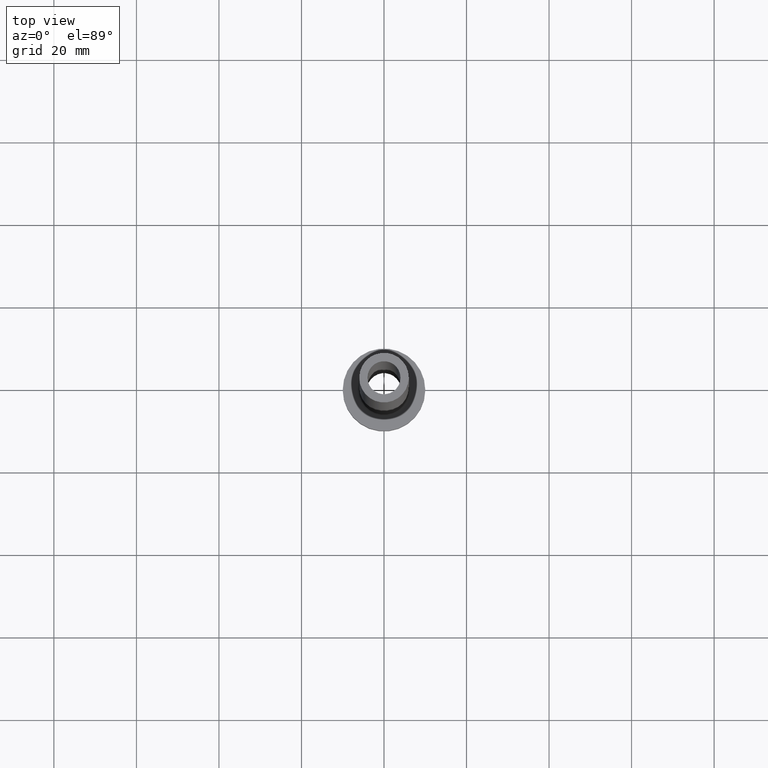
[diagram: clean part render]
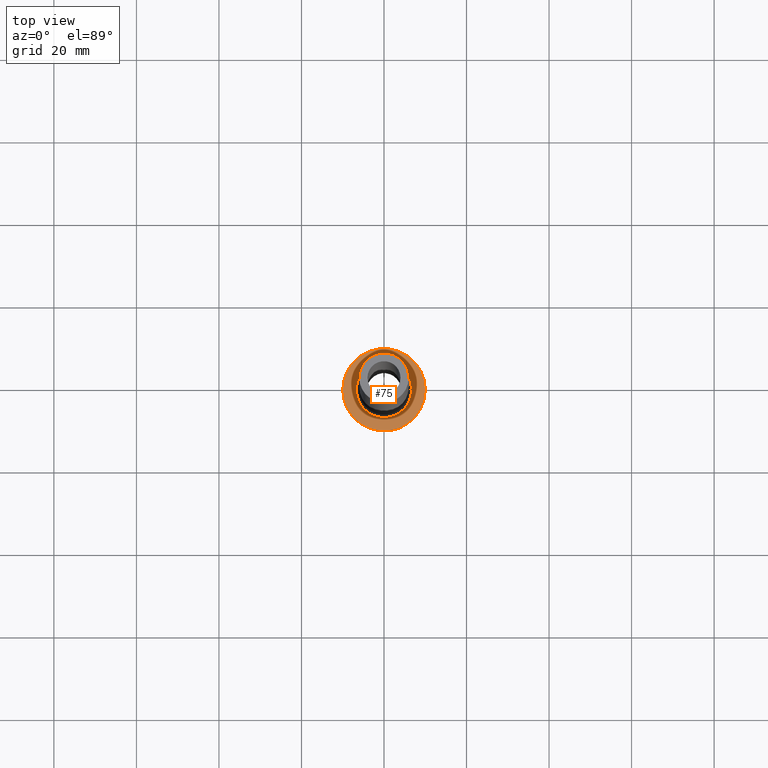
[diagram: same view with one face highlighted and labeled with its STEP entity id]
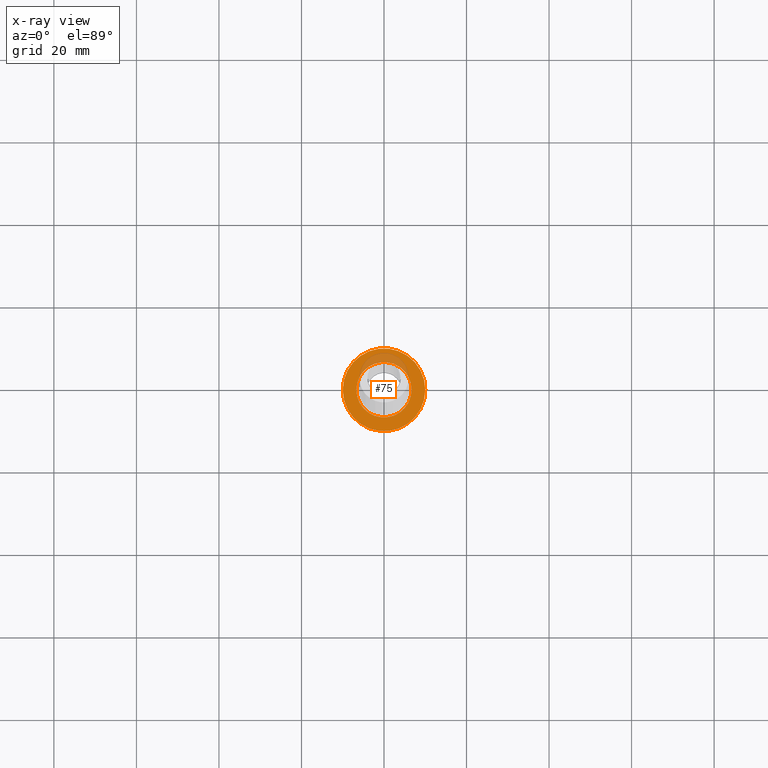
[diagram: x-ray of the same camera — body ghosted, the highlighted face saturated]
A machine part, top view. The second image highlights one B-rep face of the part: STEP entity #75.
The next image is the same camera in x-ray: the body ghosted, the highlighted face saturated — about 14% of this face is hidden behind the body in this view.
In plain terms, the highlighted planar face has unit normal (0, 0, 1).
Its self-contained STEP definition (entity closure, byte-faithful):
#9 = VERTEX_POINT ( 'NONE', #152 ) ;
#18 = AXIS2_PLACEMENT_3D ( 'NONE', #408, #298, #370 ) ;
#20 = AXIS2_PLACEMENT_3D ( 'NONE', #142, #222, #297 ) ;
#24 = PLANE ( 'NONE',  #82 ) ;
#46 = DIRECTION ( 'NONE',  ( 0.000000000000000000, 0.000000000000000000, 1.000000000000000000 ) ) ;
#52 = EDGE_CURVE ( 'NONE', #348, #226, #326, .T. ) ;
#75 = ADVANCED_FACE ( 'NONE', ( #102, #394 ), #24, .T. ) ;
#82 = AXIS2_PLACEMENT_3D ( 'NONE', #168, #320, #314 ) ;
#89 = AXIS2_PLACEMENT_3D ( 'NONE', #149, #46, #159 ) ;
#102 = FACE_BOUND ( 'NONE', #202, .T. ) ;
#105 = DIRECTION ( 'NONE',  ( -0.000000000000000000, -0.000000000000000000, -1.000000000000000000 ) ) ;
#111 = CIRCLE ( 'NONE', #89, 10.00000000000000000 ) ;
#115 = EDGE_CURVE ( 'NONE', #9, #151, #460, .T. ) ;
#142 = CARTESIAN_POINT ( 'NONE',  ( 0.000000000000000000, 0.000000000000000000, 7.000000000000000000 ) ) ;
#147 = ORIENTED_EDGE ( 'NONE', *, *, #115, .T. ) ;
#149 = CARTESIAN_POINT ( 'NONE',  ( 0.000000000000000000, 0.000000000000000000, 7.000000000000000000 ) ) ;
#151 = VERTEX_POINT ( 'NONE', #299 ) ;
#152 = CARTESIAN_POINT ( 'NONE',  ( 6.700000000000001066, 0.000000000000000000, 7.000000000000006217 ) ) ;
#159 = DIRECTION ( 'NONE',  ( 1.000000000000000000, 0.000000000000000000, 0.000000000000000000 ) ) ;
#168 = CARTESIAN_POINT ( 'NONE',  ( 0.000000000000000000, 0.000000000000000000, 7.000000000000000000 ) ) ;
#198 = ORIENTED_EDGE ( 'NONE', *, *, #411, .T. ) ;
#202 = EDGE_LOOP ( 'NONE', ( #147, #384 ) ) ;
#210 = CARTESIAN_POINT ( 'NONE',  ( 0.000000000000000000, 0.000000000000000000, 7.000000000000000000 ) ) ;
#222 = DIRECTION ( 'NONE',  ( 0.000000000000000000, 0.000000000000000000, 1.000000000000000000 ) ) ;
#226 = VERTEX_POINT ( 'NONE', #414 ) ;
#256 = AXIS2_PLACEMENT_3D ( 'NONE', #210, #105, #400 ) ;
#269 = CARTESIAN_POINT ( 'NONE',  ( 10.00000000000000000, 1.224646799147353256E-15, 7.000000000000000000 ) ) ;
#284 = CIRCLE ( 'NONE', #18, 6.700000000000001066 ) ;
#297 = DIRECTION ( 'NONE',  ( 1.000000000000000000, 0.000000000000000000, 0.000000000000000000 ) ) ;
#298 = DIRECTION ( 'NONE',  ( -0.000000000000000000, -0.000000000000000000, -1.000000000000000000 ) ) ;
#299 = CARTESIAN_POINT ( 'NONE',  ( -6.700000000000001066, 8.205133554287267548E-16, 7.000000000000006217 ) ) ;
#309 = ORIENTED_EDGE ( 'NONE', *, *, #52, .T. ) ;
#314 = DIRECTION ( 'NONE',  ( 1.000000000000000000, 0.000000000000000000, -0.000000000000000000 ) ) ;
#320 = DIRECTION ( 'NONE',  ( 0.000000000000000000, 0.000000000000000000, 1.000000000000000000 ) ) ;
#326 = CIRCLE ( 'NONE', #20, 10.00000000000000000 ) ;
#348 = VERTEX_POINT ( 'NONE', #269 ) ;
#370 = DIRECTION ( 'NONE',  ( 1.000000000000000000, 0.000000000000000000, 0.000000000000000000 ) ) ;
#384 = ORIENTED_EDGE ( 'NONE', *, *, #404, .T. ) ;
#394 = FACE_OUTER_BOUND ( 'NONE', #422, .T. ) ;
#400 = DIRECTION ( 'NONE',  ( 1.000000000000000000, 0.000000000000000000, 0.000000000000000000 ) ) ;
#404 = EDGE_CURVE ( 'NONE', #151, #9, #284, .T. ) ;
#408 = CARTESIAN_POINT ( 'NONE',  ( 0.000000000000000000, 0.000000000000000000, 7.000000000000000000 ) ) ;
#411 = EDGE_CURVE ( 'NONE', #226, #348, #111, .T. ) ;
#414 = CARTESIAN_POINT ( 'NONE',  ( -10.00000000000000000, 0.000000000000000000, 7.000000000000000000 ) ) ;
#422 = EDGE_LOOP ( 'NONE', ( #198, #309 ) ) ;
#460 = CIRCLE ( 'NONE', #256, 6.700000000000001066 ) ;